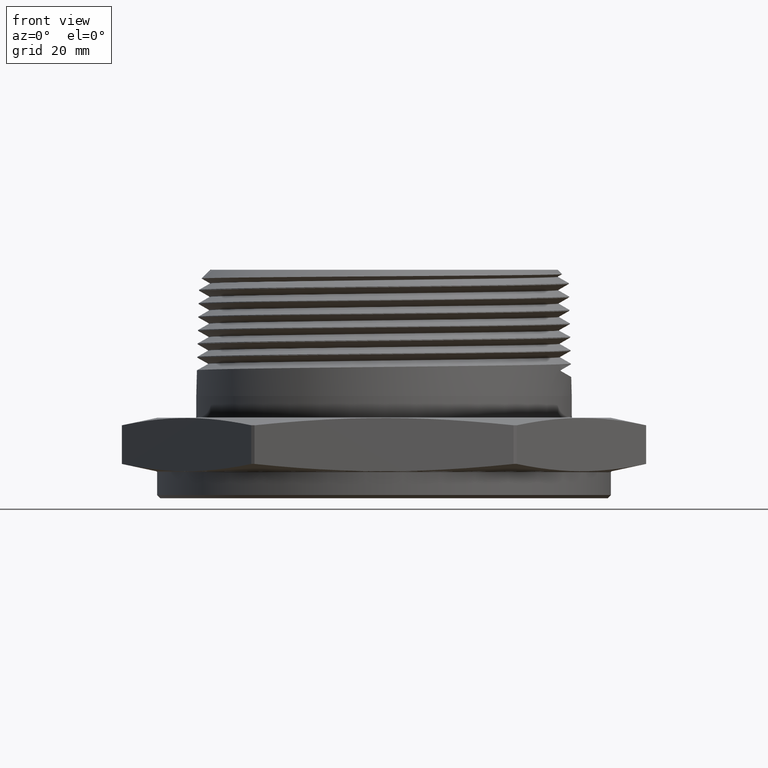
[diagram: clean part render]
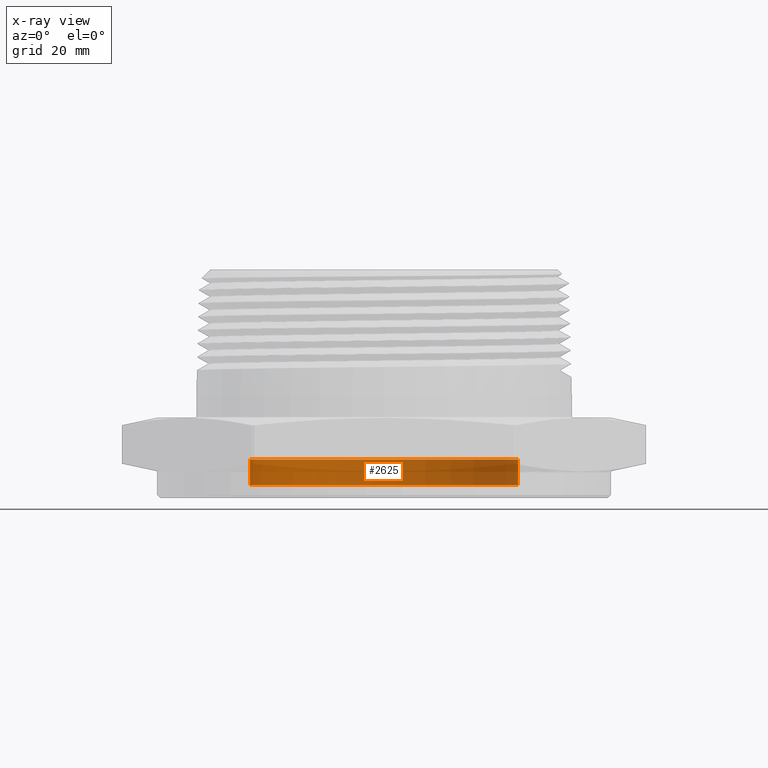
[diagram: x-ray — body ghosted, one internal face saturated and labeled with its STEP entity id]
A machine part, front view, then the same camera in x-ray: the body is ghosted and one INTERNAL B-rep face — a face not visible from any outside direction — is saturated and labeled: STEP entity #2625.
In plain terms, the highlighted cylindrical surface (partial cylindrical patch) has radius 31.75 mm, axis along (-0, -0, -1).
Its self-contained STEP definition (entity closure, byte-faithful):
#580 = ORIENTED_EDGE ( 'NONE', *, *, #5730, .F. ) ;
#597 = ORIENTED_EDGE ( 'NONE', *, *, #5731, .T. ) ;
#608 = ORIENTED_EDGE ( 'NONE', *, *, #5732, .F. ) ;
#636 = ORIENTED_EDGE ( 'NONE', *, *, #5729, .T. ) ;
#1401 = CARTESIAN_POINT ( 'NONE',  ( 1.250000000000000000, 1.530808498934191100E-016, 0.1100000000000000600 ) ) ;
#1406 = DIRECTION ( 'NONE',  ( -0.0000000000000000000, -0.0000000000000000000, -1.000000000000000000 ) ) ;
#1407 = CARTESIAN_POINT ( 'NONE',  ( -1.250000000000000000, 0.0000000000000000000, 0.1100000000000000600 ) ) ;
#1408 = DIRECTION ( 'NONE',  ( -0.0000000000000000000, -0.0000000000000000000, -1.000000000000000000 ) ) ;
#1409 = CARTESIAN_POINT ( 'NONE',  ( 4.481553156647320800E-018, 0.0000000000000000000, 0.1100000000000000600 ) ) ;
#1410 = DIRECTION ( 'NONE',  ( 0.0000000000000000000, 0.0000000000000000000, 1.000000000000000000 ) ) ;
#1411 = DIRECTION ( 'NONE',  ( 1.000000000000000000, 0.0000000000000000000, 0.0000000000000000000 ) ) ;
#1412 = CARTESIAN_POINT ( 'NONE',  ( 4.481553156647320800E-018, 0.0000000000000000000, -0.1299999999999999500 ) ) ;
#1413 = DIRECTION ( 'NONE',  ( 0.0000000000000000000, 0.0000000000000000000, 1.000000000000000000 ) ) ;
#1414 = DIRECTION ( 'NONE',  ( 1.000000000000000000, 0.0000000000000000000, 0.0000000000000000000 ) ) ;
#2147 = DIRECTION ( 'NONE',  ( -0.0000000000000000000, -0.0000000000000000000, -1.000000000000000000 ) ) ;
#2148 = DIRECTION ( 'NONE',  ( -1.000000000000000000, 0.0000000000000000000, 0.0000000000000000000 ) ) ;
#2151 = CARTESIAN_POINT ( 'NONE',  ( 4.481553156647320800E-018, 0.0000000000000000000, 0.1100000000000000600 ) ) ;
#2278 = CARTESIAN_POINT ( 'NONE',  ( 1.250000000000000000, 1.530808498934191100E-016, 0.1100000000000000600 ) ) ;
#2280 = CARTESIAN_POINT ( 'NONE',  ( -1.250000000000000000, 0.0000000000000000000, 0.1100000000000000600 ) ) ;
#2282 = CARTESIAN_POINT ( 'NONE',  ( 1.250000000000000000, 1.530808498934191100E-016, -0.1299999999999999500 ) ) ;
#2283 = CARTESIAN_POINT ( 'NONE',  ( -1.250000000000000000, 0.0000000000000000000, -0.1299999999999999500 ) ) ;
#2625 = ADVANCED_FACE ( 'NONE', ( #6202 ), #6205, .T. ) ;
#3506 = VERTEX_POINT ( 'NONE', #2278 ) ;
#3508 = VERTEX_POINT ( 'NONE', #2280 ) ;
#3510 = VERTEX_POINT ( 'NONE', #2282 ) ;
#3511 = VERTEX_POINT ( 'NONE', #2283 ) ;
#3607 = EDGE_LOOP ( 'NONE', ( #580, #636, #597, #608 ) ) ;
#5729 = EDGE_CURVE ( 'NONE', #3506, #3510, #6253, .T. ) ;
#5730 = EDGE_CURVE ( 'NONE', #3506, #3508, #6255, .T. ) ;
#5731 = EDGE_CURVE ( 'NONE', #3510, #3511, #6257, .T. ) ;
#5732 = EDGE_CURVE ( 'NONE', #3508, #3511, #6260, .T. ) ;
#5782 = AXIS2_PLACEMENT_3D ( 'NONE', #2151, #2147, #2148 ) ;
#5808 = AXIS2_PLACEMENT_3D ( 'NONE', #1409, #1410, #1411 ) ;
#5809 = AXIS2_PLACEMENT_3D ( 'NONE', #1412, #1413, #1414 ) ;
#6202 = FACE_OUTER_BOUND ( 'NONE', #3607, .T. ) ;
#6205 = CYLINDRICAL_SURFACE ( 'NONE', #5782, 1.250000000000000000 ) ;
#6253 = LINE ( 'NONE', #1401, #6258 ) ;
#6255 = CIRCLE ( 'NONE', #5808, 1.250000000000000000 ) ;
#6257 = CIRCLE ( 'NONE', #5809, 1.250000000000000000 ) ;
#6258 = VECTOR ( 'NONE', #1406, 39.37007874015748100 ) ;
#6260 = LINE ( 'NONE', #1407, #6262 ) ;
#6262 = VECTOR ( 'NONE', #1408, 39.37007874015748100 ) ;